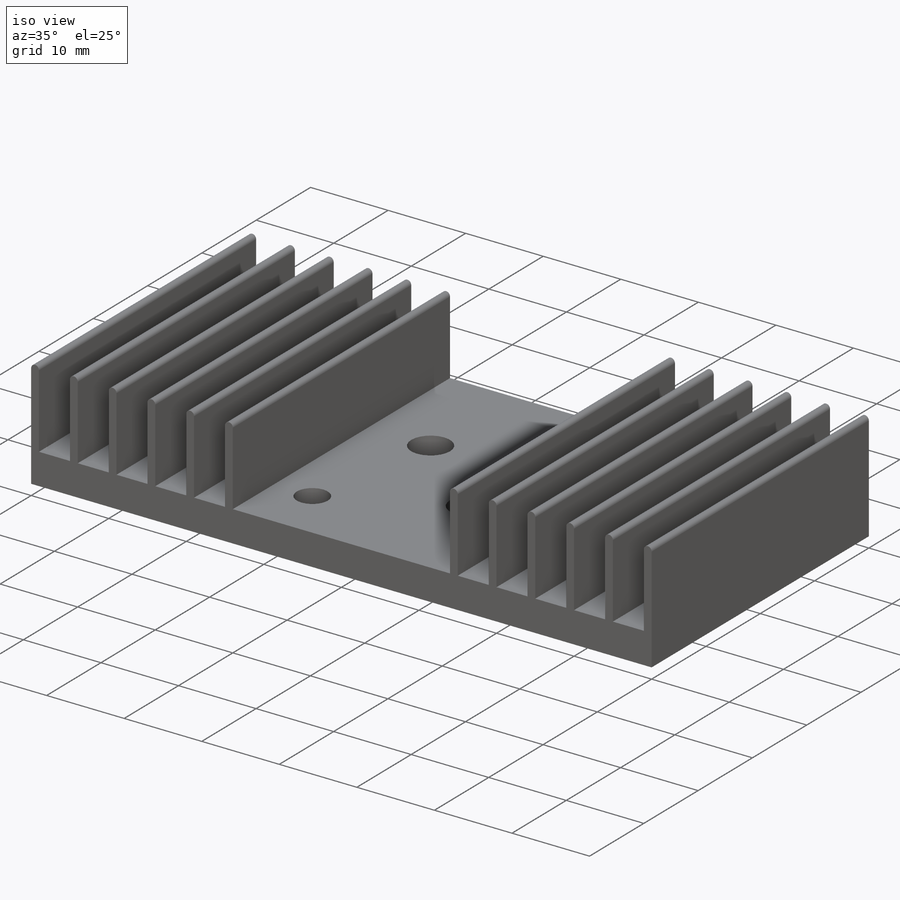
[diagram: iso view]
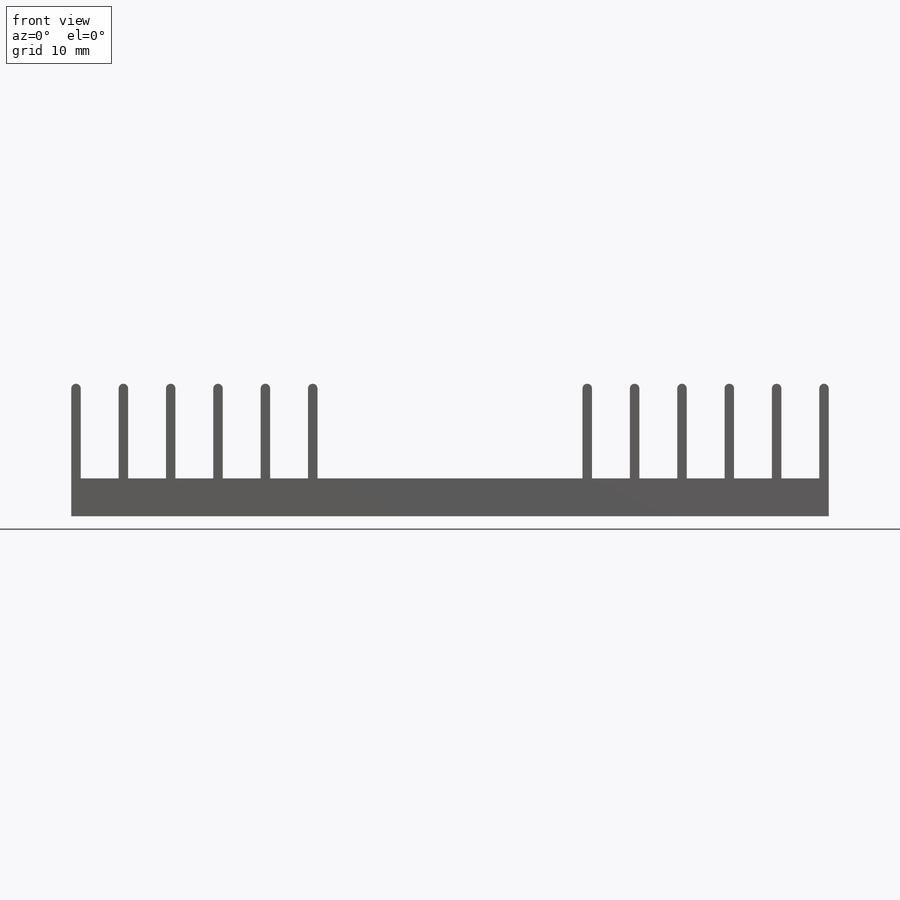
[diagram: front view]
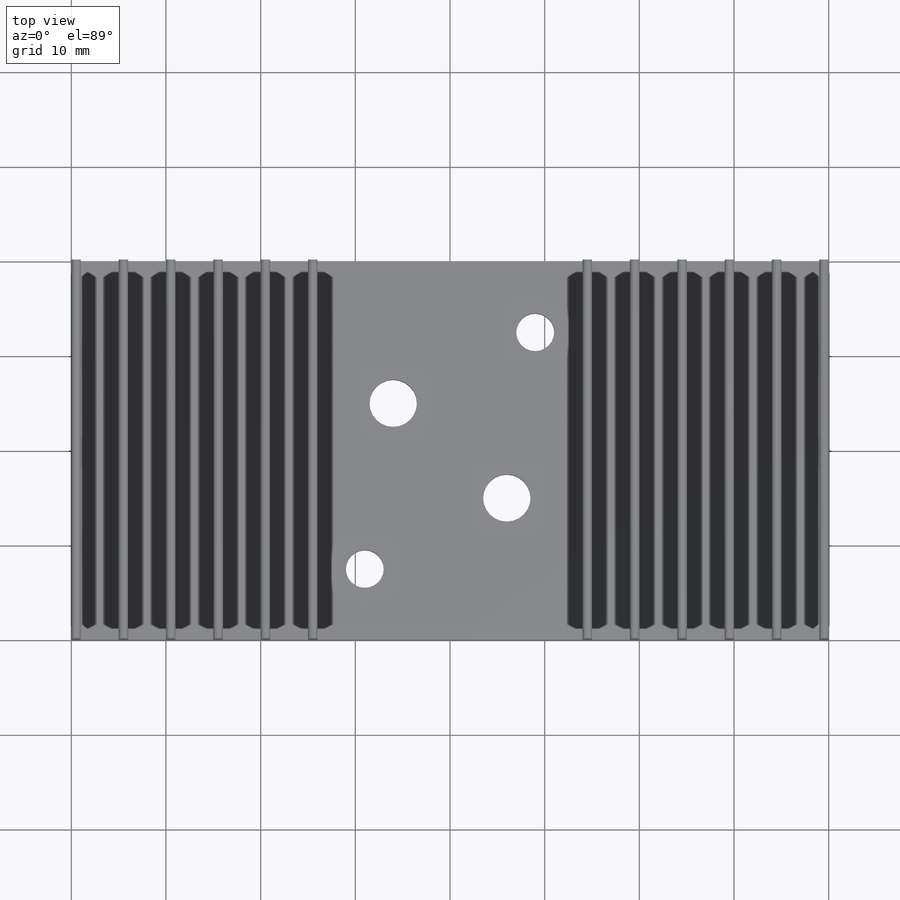
[diagram: top view]
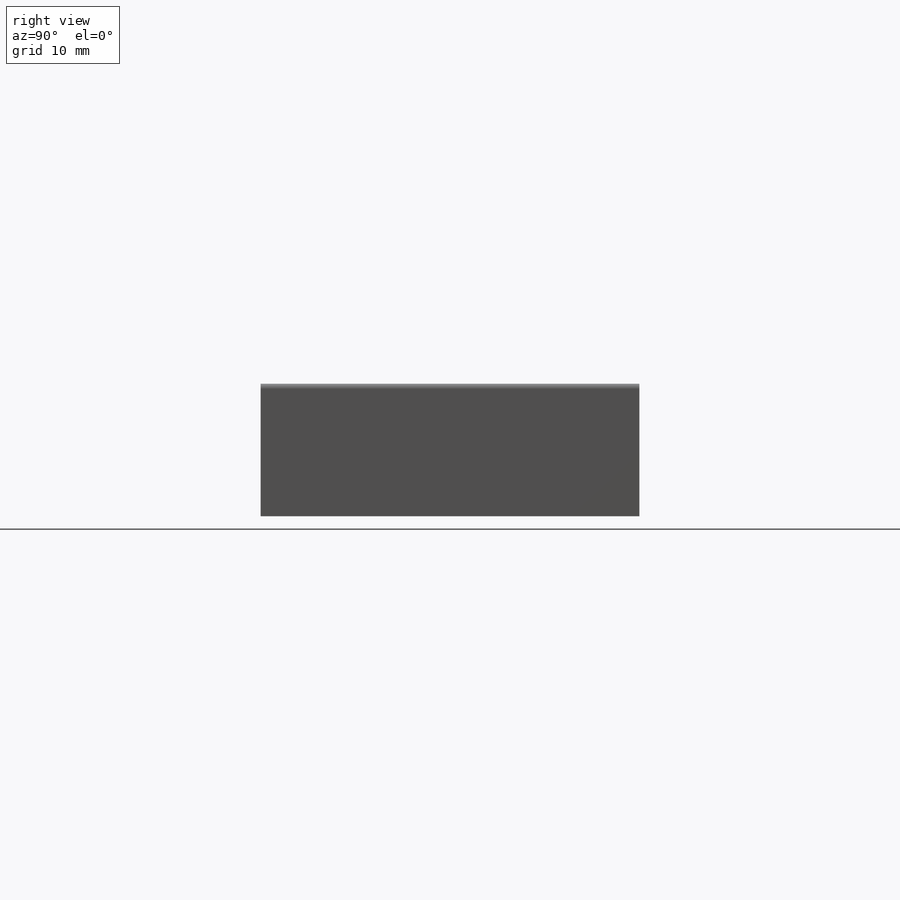
[diagram: right view]
SOLIDWORKS PART (.sldprt)
format: sldprt  version: not decoded by parser v0  size: 374,272 bytes
history: native  units: mm
features: plane x3, sketch x3, extrude x2, material x1, fillet x1, cut_extrude x1 (+9 scaffold rows collapsed)
feature tree (20):
  scaffold x9  (default folders/planes/origin — collapsed)
  material  "Alliage 1345"
  plane  "Plan de face"
  plane  "Plan de dessus"
  plane  "Plan de droite"
  sketch  "Esquisse1"  dims[D1=20.0mm D2=40.0mm D3=80.0mm D4=40.0mm]
  extrude  "Boss.-Extru.1"  Depth=4mm
  sketch  "Esquisse2"  dims[c1.D1=1.0mm c1.D2=1.0mm c1.D3=1.0mm c1.D4=1.0mm c1.D5=1.0mm c1.D6=1.0mm c1.D7=0.0mm c1.D8=0.0mm c1.D9=0.0mm c1.D10=0.0mm c1.D11=0.0mm c1.D12=40.0mm c1.D13=40.0mm c1.D14=40.0mm c1.D15=40.0mm c1.D16=40.0mm c1.D17=40.0mm c1.D18=4.0mm c1.D19=4.0mm c1.D20=4.0mm c1.D21=4.0mm c1.D22=4.0mm c2.D13=1.0mm c2.D23=1.0mm c2.D24=1.0mm c2.D25=1.0mm c2.D26=1.0mm c2.D27=1.0mm c2.D28=40.0mm c2.D29=40.0mm c2.D30=40.0mm c2.D31=40.0mm c2.D32=40.0mm c2.D33=4.0mm c2.D34=4.0mm c2.D35=4.0mm c2.D36=4.0mm c2.D37=4.0mm c2.D38=0.0mm c2.D39=0.0mm c2.D40=1.0mm]
  extrude  "Boss.-Extru.2"  Depth=10mm
  fillet  "Congé1"  Radius=0.5mm
  sketch  "Esquisse3"  dims[D1=4.0mm D2=4.0mm D3=5.0mm D4=5.0mm D5=25.0mm D6=25.0mm D7=8.0mm D8=5.0mm D9=5.0mm D10=8.0mm D11=7.5mm D12=7.5mm]
  cut_extrude  "Enlèv. mat.-Extru.1"  Depth=10mm
decode coverage: 7 of 7 modeling features carry decoded parameters
note: suppression state not decoded; provenance and decode notes live in map.json
